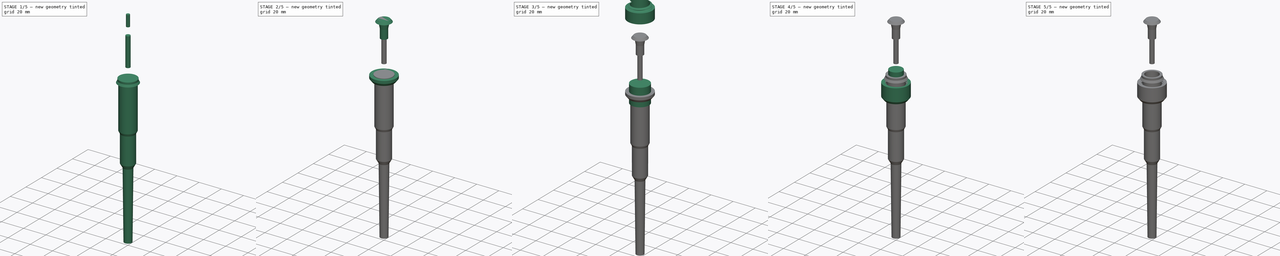
[diagram: build sequence overview — one tinted view per stage of 5, left to right]
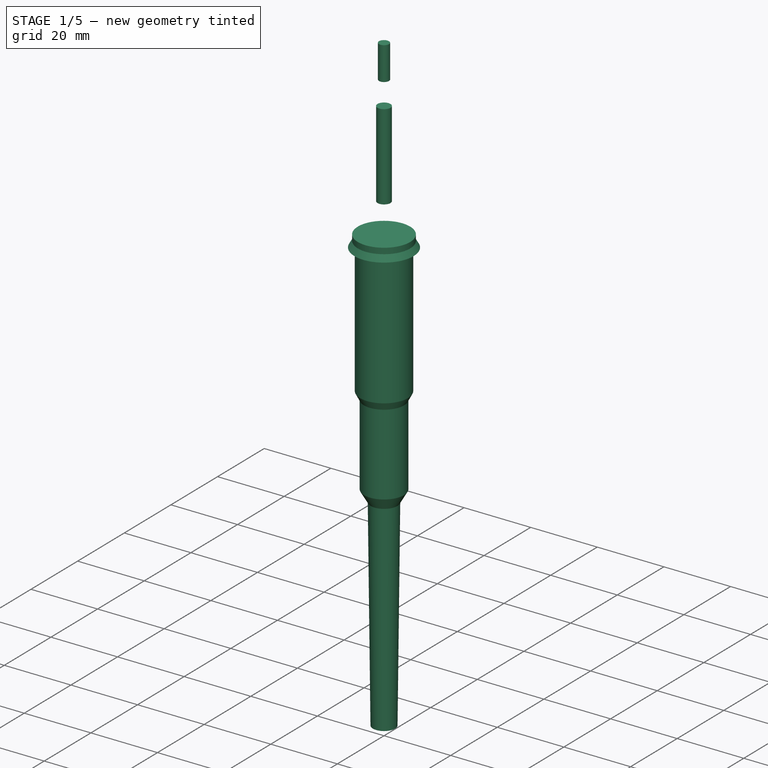
[diagram: stage 1 of 5 — iso view after this stage's code; geometry added in this stage tinted green]
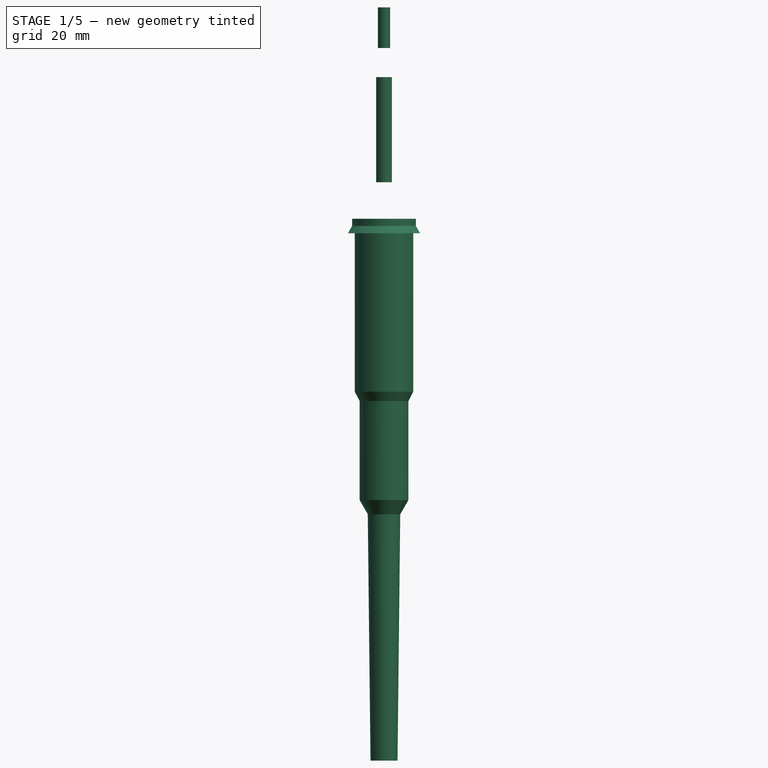
[diagram: stage 1 of 5 — front view after this stage's code; geometry added in this stage tinted green]
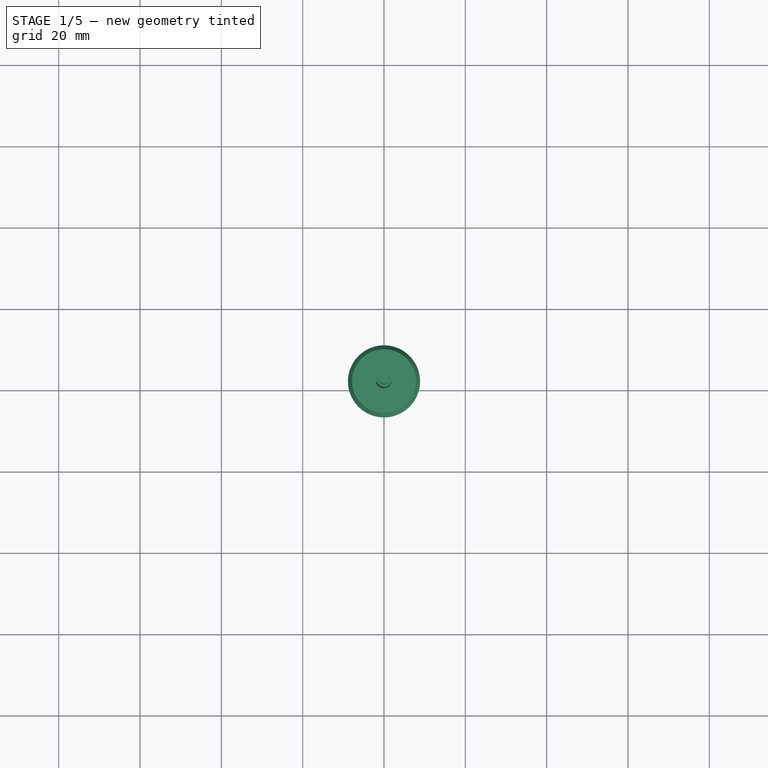
[diagram: stage 1 of 5 — top view after this stage's code; geometry added in this stage tinted green]
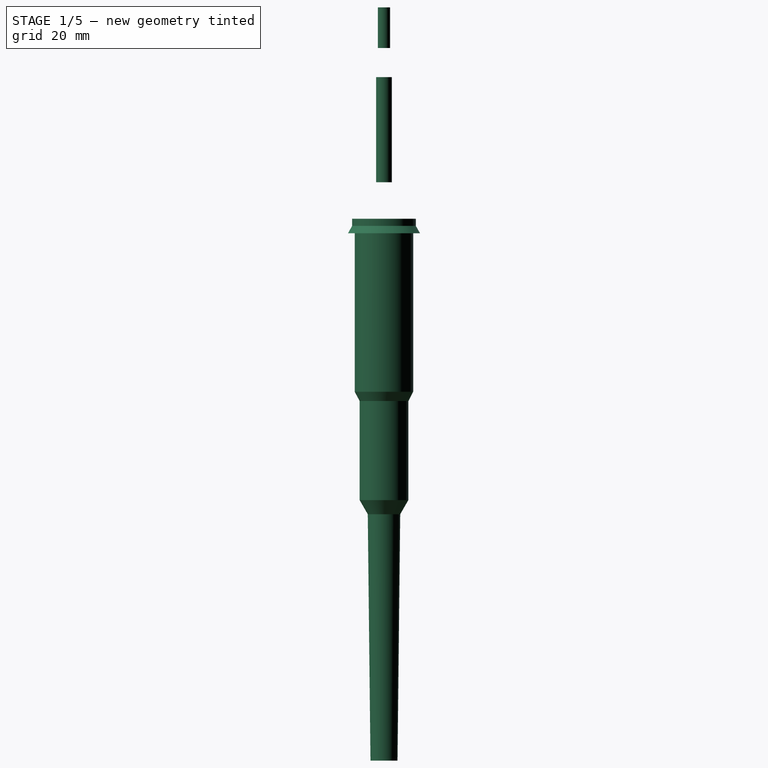
[diagram: stage 1 of 5 — right view after this stage's code; geometry added in this stage tinted green]
FCSTD DOCUMENT  (FreeCAD 0.18R16110 (Git))
Label: P1000_Bottom
License: All rights reserved
LicenseURL: http://en.wikipedia.org/wiki/All_rights_reserved
objects: Part::Cylinder×9, Part::Cut×7, Sketcher::SketchObject×3, Part::MultiFuse×3, Part::FeaturePython×3, Part::Revolution×2, Spreadsheet::Sheet×1, Part::Helix×1, Part::Sweep×1, Part::Cone×1
note: 30 computed .brp shape members not serialized (recipe doc carries the construction recipe); baked Part::Feature solids carry a one-line shape summary decoded from their .brp

FEATURE [Spreadsheet::Sheet] Spreadsheet
  cells = A1=Steigung; B1=2; A2=H; B2==sqrt((B1 / 2 / sin(60 / 2)) ^ 2 - (B1 / 2) ^ 2); A3=h; B3=8; A5=Nut; A6=ra; B6=11; A7=si; B7=2; A8=ri; B8==B11 - 5 / 8 * B2 + B15; A10=Bolt; A11=ra; B11==18.45 / 2 - B15; A12=si; B12=2.5; A13=ri; B13==B11 - B12; A15=tolerance; B15=0.2
FEATURE [Part::Cylinder] Cylinder014  label="Zylinder014"
  Angle = 360
  AttacherType = Attacher::AttachEngine3D
  Height = 10
  Placement = pos=(0,0,-17) rot=(0,0,1;0rad)
  Radius = 1.5
FEATURE [Part::Cylinder] Cylinder009  label="Zylinder009"
  Angle = 360
  AttacherType = Attacher::AttachEngine3D
  Height = 23.5
  Placement = pos=(0,0,-3) rot=(0,0,1;0rad)
  Radius = 1.5
FEATURE [Part::Helix] Helix001
  Angle = 0
  AttacherType = Attacher::AttachEngine3D
  Height = 13
  LocalCoord = 0
  Pitch = 2
  Placement = pos=(0,0,-1) rot=(0,0,1;0rad)
  Radius = 8.14247
  Style = 1
  expr: Radius = Spreadsheet.B8
  expr: Height = Spreadsheet.B3 + 5
  expr: Pitch = Spreadsheet.B1
FEATURE [Sketcher::SketchObject] Sketch002
  Placement = pos=(0,0,0) rot=(1,0,0;1.5708rad)
  sketch-geometry (11):
    g0: LineSegment StartX=0 StartY=0 StartZ=0 EndX=2.24 EndY=0 EndZ=0
    g1: LineSegment StartX=2.24 StartY=0 StartZ=0 EndX=2.24 EndY=-0.7 EndZ=0
    g2: LineSegment StartX=2.24 StartY=-0.7 StartZ=0 EndX=2.53245 EndY=-1.4231 EndZ=0
    g3: LineSegment StartX=2.53245 StartY=-1.4231 StartZ=0 EndX=2.05406 EndY=-1.4231 EndZ=0
    g4: LineSegment StartX=2.05406 StartY=-1.4231 StartZ=0 EndX=2.05174 EndY=-17.0131 EndZ=0
    g5: LineSegment StartX=2.05174 StartY=-17.0131 StartZ=0 EndX=1.71619 EndY=-17.9232 EndZ=0
    g6: LineSegment StartX=1.71619 StartY=-17.9232 StartZ=0 EndX=1.70963 EndY=-27.6732 EndZ=0
    g7: LineSegment StartX=1.70963 StartY=-27.6732 StartZ=0 EndX=1.13976 EndY=-29.0607 EndZ=0
    g8: LineSegment StartX=1.13976 StartY=-29.0607 StartZ=0 EndX=0.95 EndY=-53.3 EndZ=0
    g9: LineSegment StartX=0.95 StartY=-53.3 StartZ=0 EndX=0 EndY=-53.3 EndZ=0
    g10: LineSegment StartX=0 StartY=-53.3 StartZ=0 EndX=0 EndY=0 EndZ=0
  constraints (32):
    c: Coincident(g-1,g0)
    c: Horizontal(g0)
    c: Coincident(g0,g1)
    c: Vertical(g1)
    c: Coincident(g1,g2)
    c: Coincident(g2,g3)
    c: Coincident(g3,g4)
    c: Coincident(g4,g5)
    c: Coincident(g5,g6)
    c: Coincident(g6,g7)
    c: Coincident(g7,g8)
    c: Coincident(g8,g9)
    c: Coincident(g9,g10)
    c: Coincident(g10,g0)
    c: Vertical(g10)
    c: Horizontal(g3)
    c: Horizontal(g9)
    c: DistanceX(g0,g0) = 2.24
    c: Distance(g4) = 15.59
    c: Distance(g2) = 0.78
    c: DistanceY(g1,g1) = 0.7
    c: DistanceY(g10,g10) = 53.3
    c: Distance(g5) = 0.97
    c: Distance(g7) = 1.5
    c: DistanceX(g9,g9) = 0.95
    c: Distance(g6) = 9.75
    c: Distance(g8) = 24.24
    c: Angle(g2,g3) = 1.18647
    c: Angle(g4,g5) = 2.78851
    c: Angle(g6,g5) = 2.78904
    c: Angle(g6,g7) = 2.75256
    c: Angle(g8,g7) = 2.75971
FEATURE [Part::Revolution] Revolve  label="Pip_Stumpf"
  Angle = 360
  Axis = (0,0,1)
  Base = (0,0,0)
  FaceMakerClass = Part::FaceMakerBullseye
  Placement = pos=(0,0,-64) rot=(0,0,1;0rad)
  Solid = true
  Source = -> Sketch002
  Symmetric = false
FEATURE [Part::FeaturePython] Scale  # Draft clone (typed FeaturePython)
  Fuse = false
  Objects = -> [Revolve]
  Placement = pos=(0,0,-59) rot=(0,0,-1;1.5708rad)
  Scale = (3.5,3.5,2.5)
FEATURE [Part::FeaturePython] Scale007  # Draft clone (typed FeaturePython)
  Fuse = false
  Objects = -> [Cylinder009]
  Placement = pos=(0,0,-50) rot=(0,0,1;0rad)
  Scale = (1.3,1.3,1.1)
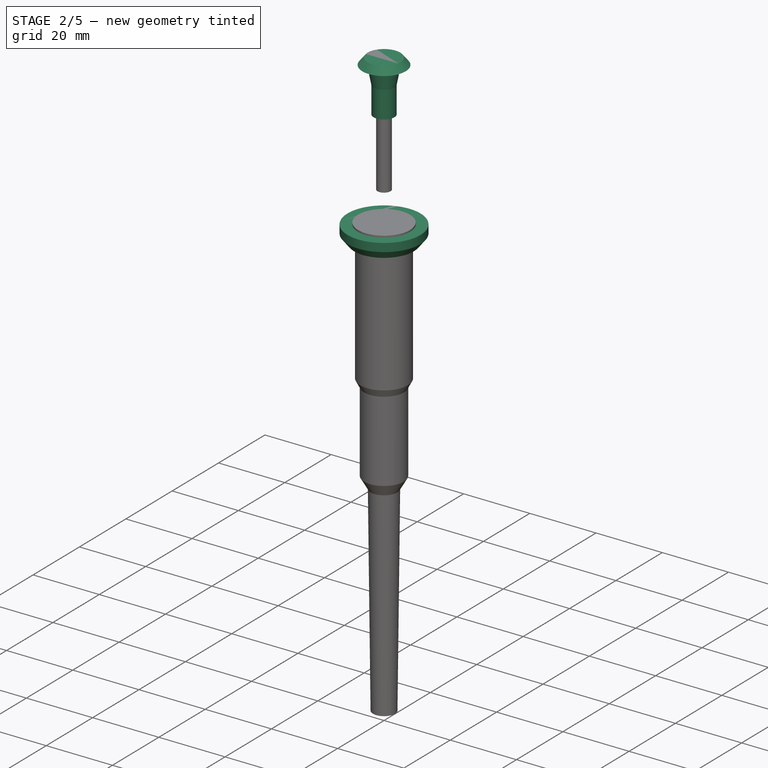
[diagram: stage 2 of 5 — iso view after this stage's code; geometry added in this stage tinted green]
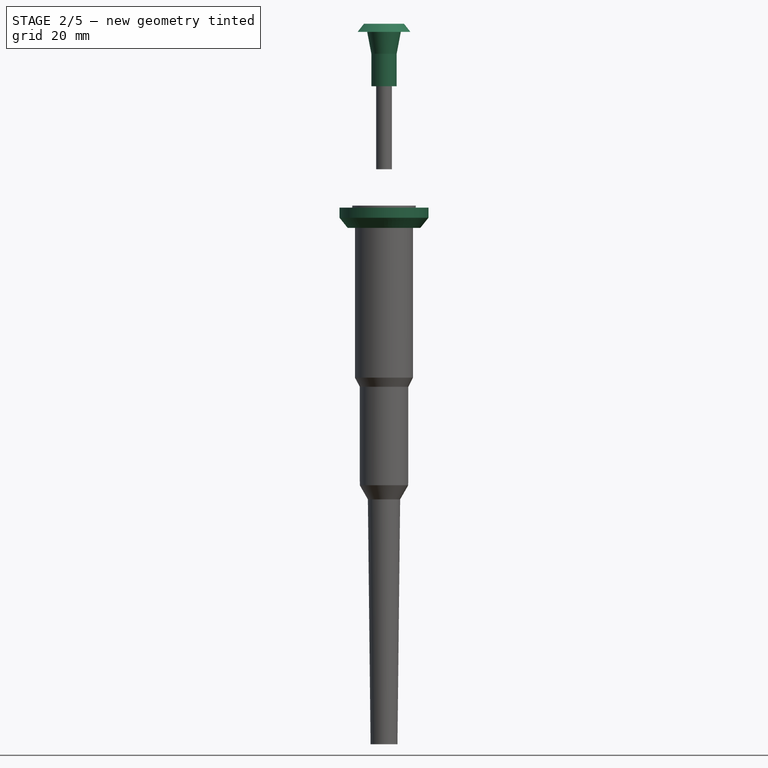
[diagram: stage 2 of 5 — front view after this stage's code; geometry added in this stage tinted green]
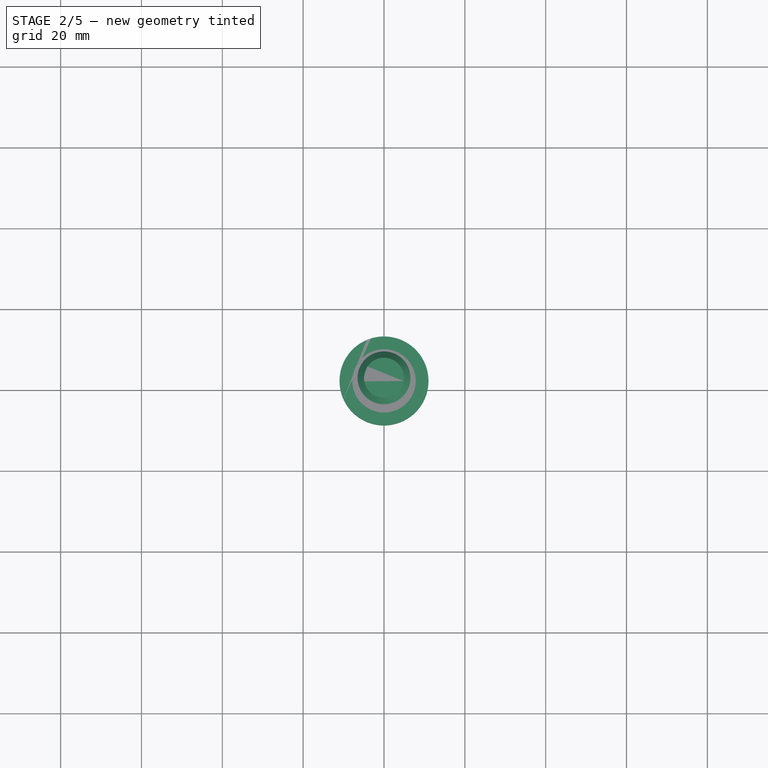
[diagram: stage 2 of 5 — top view after this stage's code; geometry added in this stage tinted green]
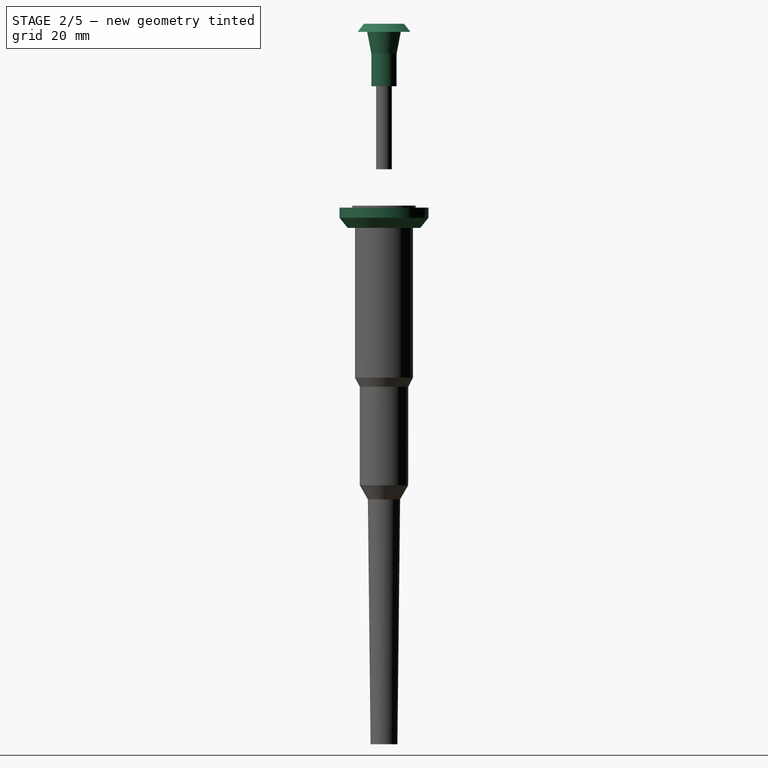
[diagram: stage 2 of 5 — right view after this stage's code; geometry added in this stage tinted green]
FEATURE [Part::Cylinder] Cylinder200  label="Zylinder200"
  Angle = 360
  AttacherType = Attacher::AttachEngine3D
  Height = 2.5
  Placement = pos=(0,0,-62) rot=(0,0,-1;1.5708rad)
  Radius = 11
  expr: Radius = Spreadsheet.B6
FEATURE [Sketcher::SketchObject] Sketch006  label="KolbenAufsatz"
  Placement = pos=(0,0,0) rot=(1,0,0;1.5708rad)
  sketch-geometry (7):
    g0: LineSegment StartX=0 StartY=0 StartZ=0 EndX=-3.81 EndY=0 EndZ=0
    g1: LineSegment StartX=-3.81 StartY=0 StartZ=0 EndX=-5.0293 EndY=-1.8432 EndZ=0
    g2: LineSegment StartX=-5.0293 StartY=-1.8432 StartZ=0 EndX=-3.1993 EndY=-1.8432 EndZ=0
    g3: LineSegment StartX=-3.1993 StartY=-1.8432 StartZ=0 EndX=-2.41 EndY=-6.74 EndZ=0
    g4: LineSegment StartX=-2.41 StartY=-6.74 StartZ=0 EndX=-2.41 EndY=-14.07 EndZ=0
    g5: LineSegment StartX=-2.41 StartY=-14.07 StartZ=0 EndX=0 EndY=-14.07 EndZ=0
    g6: LineSegment StartX=0 StartY=-14.07 StartZ=0 EndX=0 EndY=0 EndZ=0
  constraints (20):
    c: Coincident(g-1,g0)
    c: Horizontal(g0)
    c: Coincident(g0,g1)
    c: Coincident(g1,g2)
    c: Coincident(g2,g3)
    c: Coincident(g3,g4)
    c: Vertical(g4)
    c: Coincident(g4,g5)
    c: Horizontal(g5)
    c: Coincident(g5,g6)
    c: Coincident(g6,g0)
    c: Vertical(g6)
    c: Horizontal(g2)
    c: DistanceX(g0,g0) = 3.81
    c: DistanceX(g2,g2) = 1.83
    c: DistanceX(g5,g5) = 2.41
    c: DistanceY(g6,g6) = 14.07
    c: DistanceY(g4,g4) = 7.33
    c: Distance(g3) = 4.96
    c: Distance(g1) = 2.21
FEATURE [Part::Revolution] Revolve001
  Angle = 360
  Axis = (0,0,1)
  Base = (0,0,0)
  FaceMakerClass = Part::FaceMakerBullseye
  Solid = true
  Source = -> Sketch006
  Symmetric = false
FEATURE [Part::Cut] Cut016
  Base = -> Revolve001
  Placement = pos=(0,0,27.5) rot=(0,0,1;0rad)
  Tool = -> Cylinder014
FEATURE [Part::Cone] Cone001  label="Kegel001"
  Angle = 360
  AttacherType = Attacher::AttachEngine3D
  Height = 2.5
  Placement = pos=(0,0,-64.5) rot=(0,0,-1;1.5708rad)
  Radius1 = 9
  Radius2 = 11
FEATURE [Part::FeaturePython] Scale008  # Draft clone (typed FeaturePython)
  Fuse = false
  Objects = -> [Cut016]
  Placement = pos=(0,0,-14) rot=(0,0,1;0rad)
  Scale = (1.3,1.3,1.1)
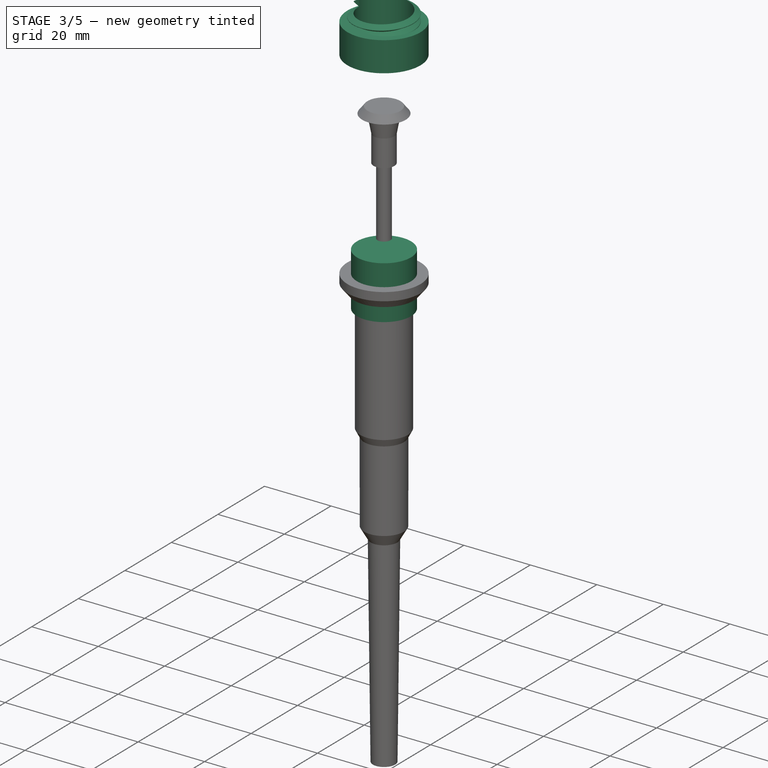
[diagram: stage 3 of 5 — iso view after this stage's code; geometry added in this stage tinted green]
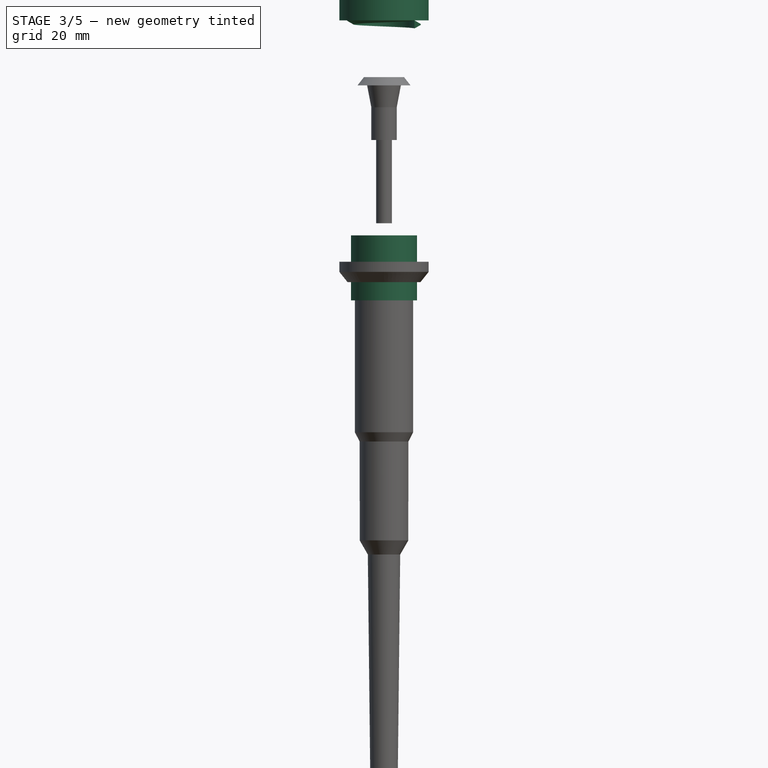
[diagram: stage 3 of 5 — front view after this stage's code; geometry added in this stage tinted green]
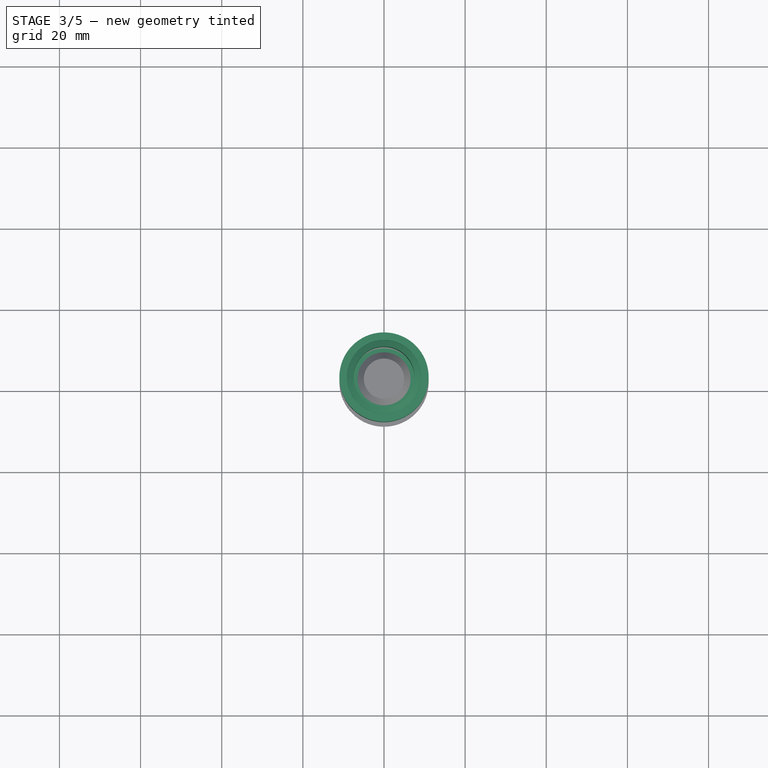
[diagram: stage 3 of 5 — top view after this stage's code; geometry added in this stage tinted green]
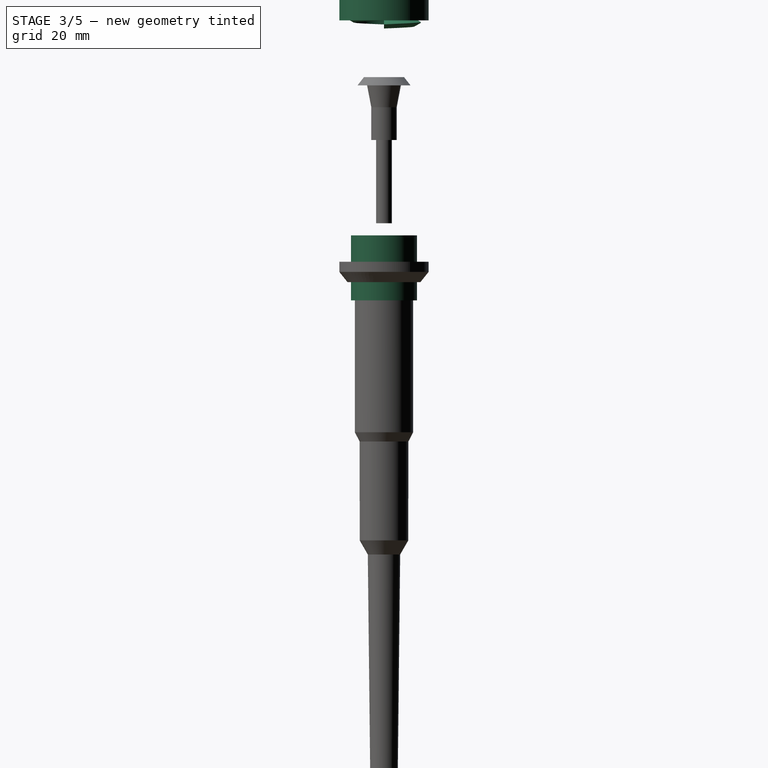
[diagram: stage 3 of 5 — right view after this stage's code; geometry added in this stage tinted green]
FEATURE [Part::Cylinder] Cylinder199  label="Zylinder199"
  Angle = 360
  AttacherType = Attacher::AttachEngine3D
  Height = 16
  Placement = pos=(0,0,-69) rot=(0,0,1;0rad)
  Radius = 8.14247
  expr: Height = Spreadsheet.B3 * 2
  expr: Radius = Spreadsheet.B8
FEATURE [Part::Cylinder] Cylinder002  label="Zylinder002"
  Angle = 360
  AttacherType = Attacher::AttachEngine3D
  Height = 9
  Placement = pos=(0,0,0) rot=(0,0,-1;1.5708rad)
  Radius = 11
  expr: Height = Spreadsheet.B3 + 1
  expr: Radius = Spreadsheet.B6
FEATURE [Part::Cylinder] Cylinder003  label="Zylinder003"
  Angle = 360
  AttacherType = Attacher::AttachEngine3D
  Height = 16
  Radius = 8.14247
  expr: Height = Spreadsheet.B3 * 2
  expr: Radius = Spreadsheet.B8
FEATURE [Part::Cut] Cut002
  Base = -> Cylinder002
  Tool = -> Cylinder003
FEATURE [Sketcher::SketchObject] Sketch001
  MapMode = 3
  Placement = pos=(0,0,0) rot=(1,0,0;1.5708rad)
  expr: Constraints[21] = Spreadsheet.B2 * 7 / 8
  expr: Constraints[20] = Spreadsheet.B1 / 2
  expr: Constraints[19] = Spreadsheet.B1 / 8 / 2
  expr: Constraints[2] = Spreadsheet.B11 - Spreadsheet.B2 * 7 / 8
  sketch-geometry (9):
    g0: LineSegment [constr] StartX=0 StartY=0 StartZ=0 EndX=7.50946 EndY=0 EndZ=0
    g1: LineSegment StartX=7.50946 StartY=0 StartZ=0 EndX=7.50946 EndY=1 EndZ=0
    g2: LineSegment StartX=7.50946 StartY=1 StartZ=0 EndX=7.50946 EndY=2 EndZ=0
    g3: LineSegment [constr] StartX=7.50946 StartY=1 StartZ=0 EndX=9.025 EndY=1 EndZ=0
    g4: LineSegment [constr] StartX=9.025 StartY=1 StartZ=0 EndX=9.025 EndY=1.125 EndZ=0
    g5: LineSegment [constr] StartX=9.025 StartY=1 StartZ=0 EndX=9.025 EndY=0.875 EndZ=0
    g6: LineSegment StartX=7.50946 StartY=2 StartZ=0 EndX=9.025 EndY=1.125 EndZ=0
    g7: LineSegment StartX=7.50946 StartY=0 StartZ=0 EndX=9.025 EndY=0.875 EndZ=0
    g8: ArcOfCircle CenterX=8.95283 CenterY=1 CenterZ=0 NormalX=0 NormalY=0 NormalZ=1 AngleXU=0 Radius=0.144339 StartAngle=5.236 EndAngle=7.33037
  constraints (25):
    c: Coincident(g0,g-1)
    c: Horizontal(g0)
    c: DistanceX(g0,g0) = 7.50946
    c: Coincident(g1,g0)
    c: Vertical(g1)
    c: Coincident(g2,g1)
    c: Vertical(g2)
    c: Equal(g2,g1)
    c: Coincident(g3,g1)
    c: Horizontal(g3)
    c: Coincident(g4,g3)
    c: Vertical(g4)
    c: Coincident(g5,g3)
    c: Vertical(g5)
    c: Equal(g4,g5)
    c: Coincident(g6,g4)
    c: Coincident(g7,g0)
    c: Coincident(g7,g5)
    c: Coincident(g2,g6)
    c: DistanceY(g4,g4) = 0.125
    c: DistanceY(g2,g2) = 1
    c: DistanceX(g3,g3) = 1.51554
    c: Coincident(g8,g5)
    c: Coincident(g8,g4)
    c: Tangent(g6,g8)
FEATURE [Part::Sweep] Sweep013
  Frenet = true
  Sections = -> [Sketch001]
  Solid = true
  Spine = -> Helix001 [Edge1,Edge2,Edge3,Edge4,Edge5,Edge6,Edge7]
  Transition = 1
FEATURE [Part::MultiFuse] Fusion053
  Shapes = -> [Cone001,Cylinder200]
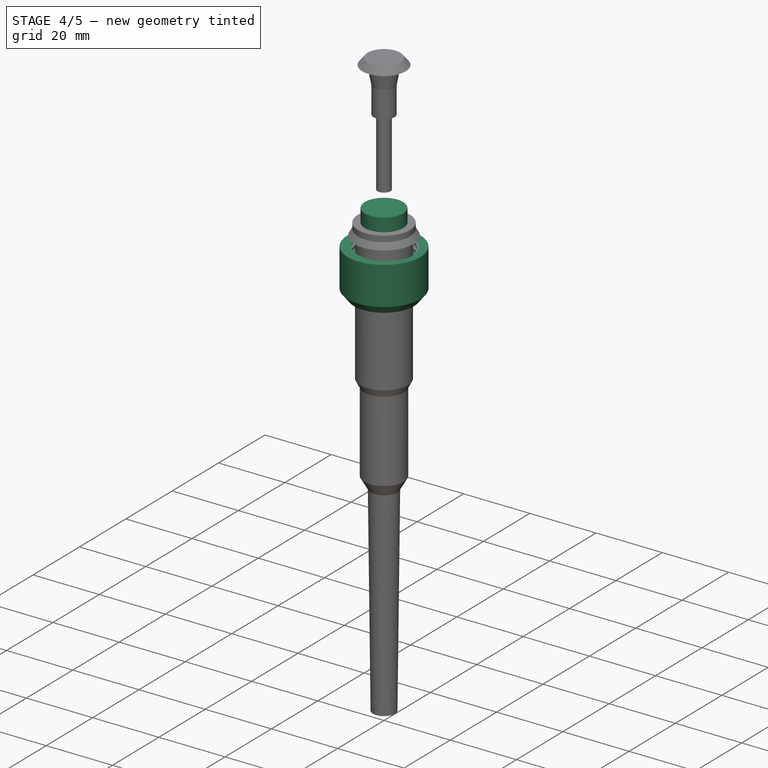
[diagram: stage 4 of 5 — iso view after this stage's code; geometry added in this stage tinted green]
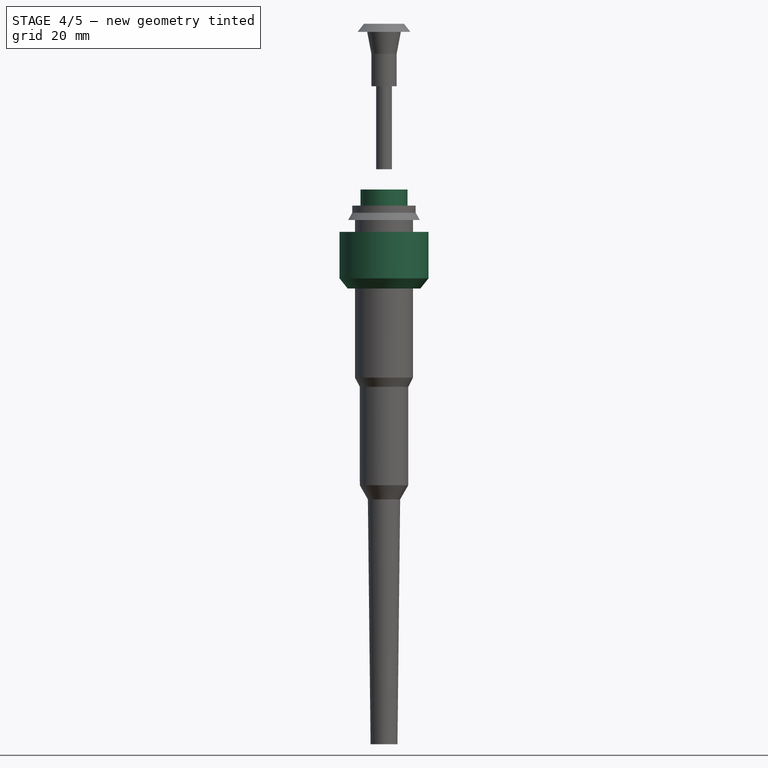
[diagram: stage 4 of 5 — front view after this stage's code; geometry added in this stage tinted green]
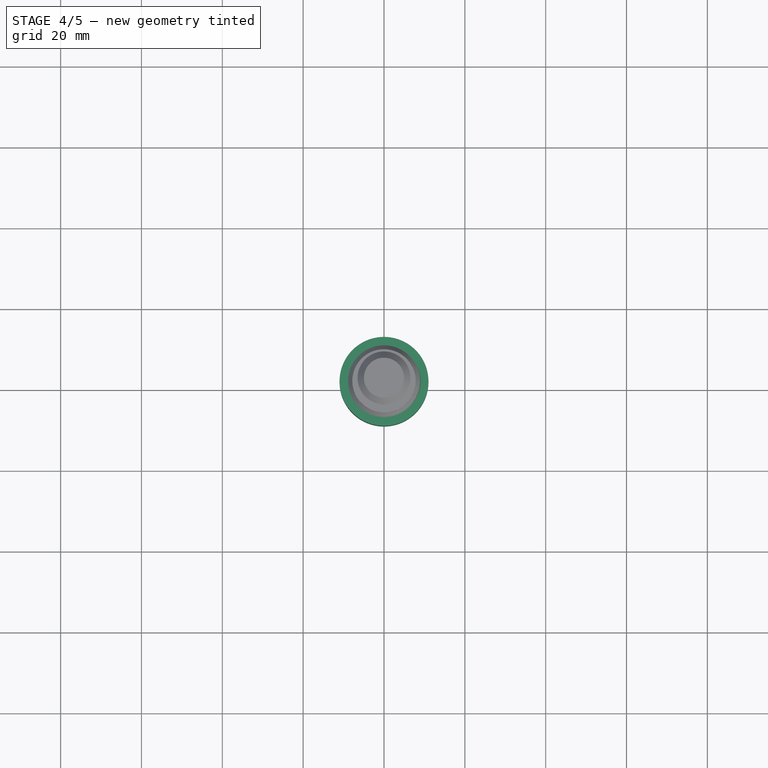
[diagram: stage 4 of 5 — top view after this stage's code; geometry added in this stage tinted green]
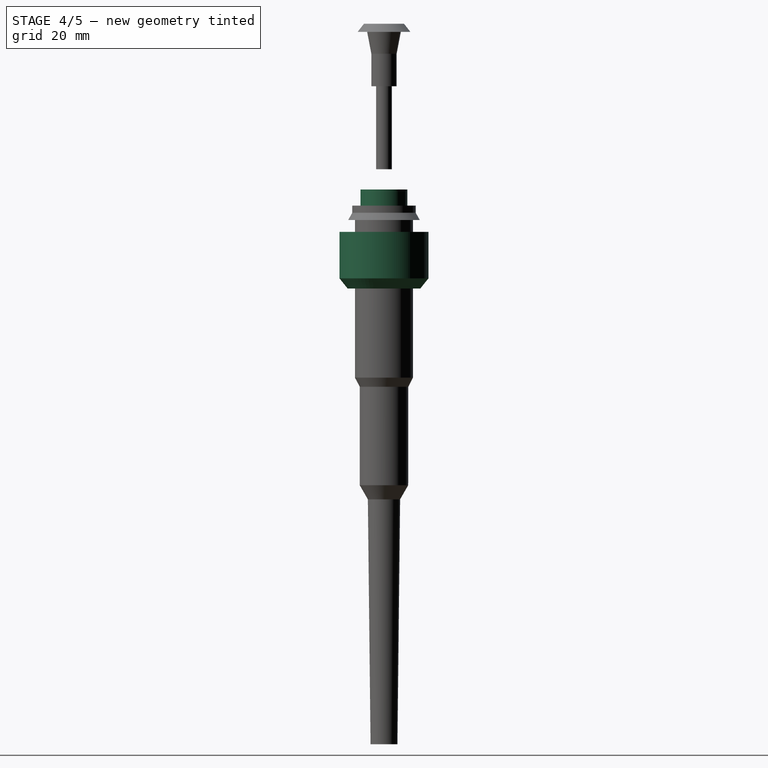
[diagram: stage 4 of 5 — right view after this stage's code; geometry added in this stage tinted green]
FEATURE [Part::Cylinder] Cylinder196  label="Zylinder196"
  Angle = 360
  AttacherType = Attacher::AttachEngine3D
  Height = 46
  Placement = pos=(0,0,-101) rot=(0,0,1;0rad)
  Radius = 5.8
FEATURE [Part::Cylinder] Cylinder197  label="Zylinder197"
  Angle = 360
  AttacherType = Attacher::AttachEngine3D
  Height = 28
  Placement = pos=(0,0,-127) rot=(0,0,1;0rad)
  Radius = 4
FEATURE [Part::Cut] Cut120  label="ConnectionNut"
  Base = -> Cut002
  Placement = pos=(0,0,-59.5) rot=(0,0,1;0rad)
  Tool = -> Sweep013
FEATURE [Part::Cut] Cut121
  Base = -> Fusion053
  Tool = -> Cylinder199
FEATURE [Part::MultiFuse] Fusion054  label="ConnectionNut001"
  Placement = pos=(0,0,-15) rot=(0,0,1;0rad)
  Shapes = -> [Cut121,Cut120]
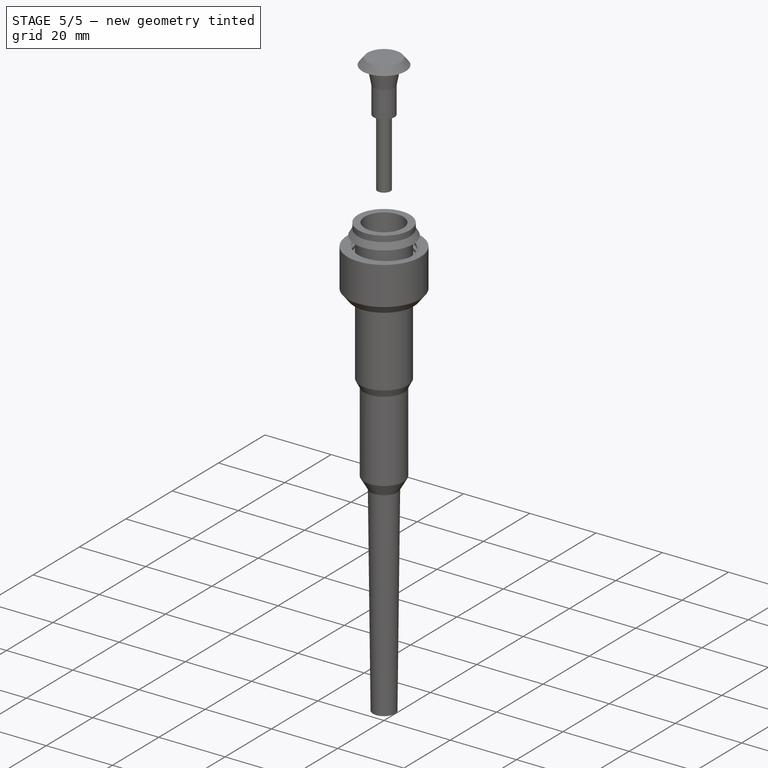
[diagram: stage 5 of 5 — iso view after this stage's code; geometry added in this stage tinted green]
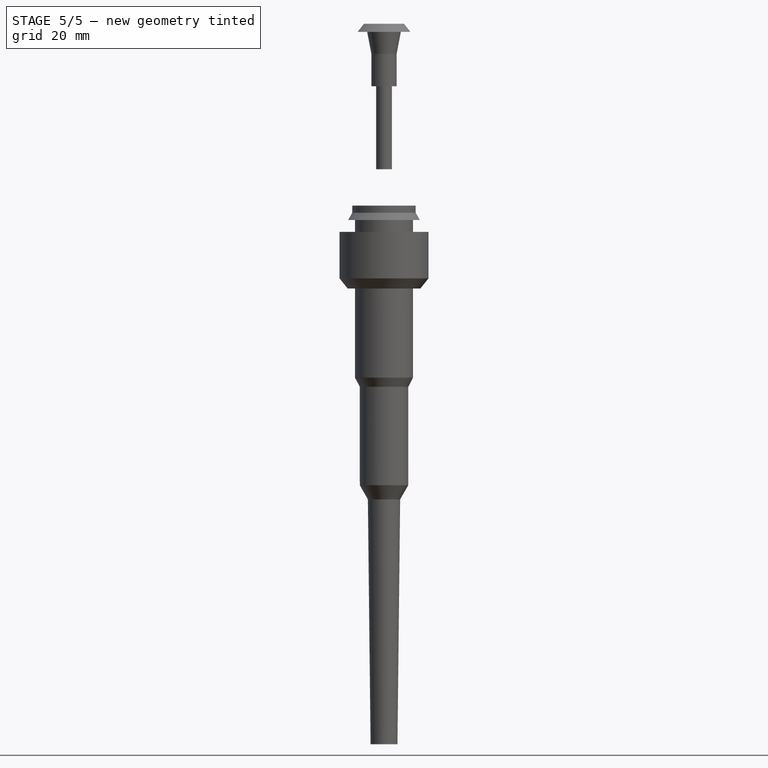
[diagram: stage 5 of 5 — front view after this stage's code; geometry added in this stage tinted green]
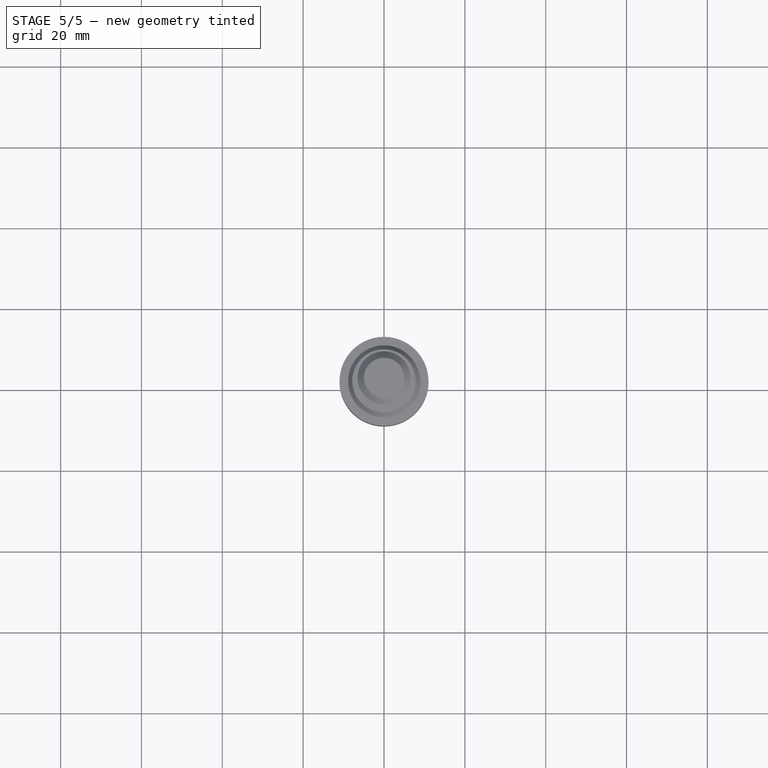
[diagram: stage 5 of 5 — top view after this stage's code; geometry added in this stage tinted green]
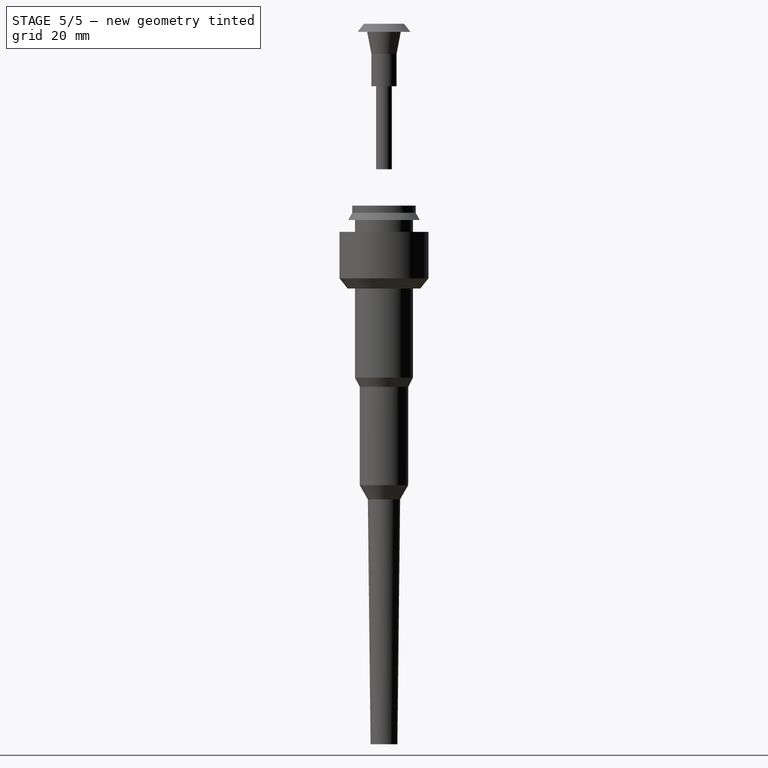
[diagram: stage 5 of 5 — right view after this stage's code; geometry added in this stage tinted green]
FEATURE [Part::Cylinder] Cylinder198  label="Zylinder198"
  Angle = 360
  AttacherType = Attacher::AttachEngine3D
  Height = 67
  Placement = pos=(0,0,-193) rot=(0,0,1;0rad)
  Radius = 1.5
FEATURE [Part::Cut] Cut117
  Base = -> Scale
  Tool = -> Cylinder196
FEATURE [Part::Cut] Cut118
  Base = -> Cut117
  Tool = -> Cylinder197
FEATURE [Part::Cut] Cut119  label="PipettenStumpf"
  Base = -> Cut118
  Tool = -> Cylinder198
FEATURE [Part::MultiFuse] Fusion
  Shapes = -> [Scale007,Scale008,Cut119,Fusion054]
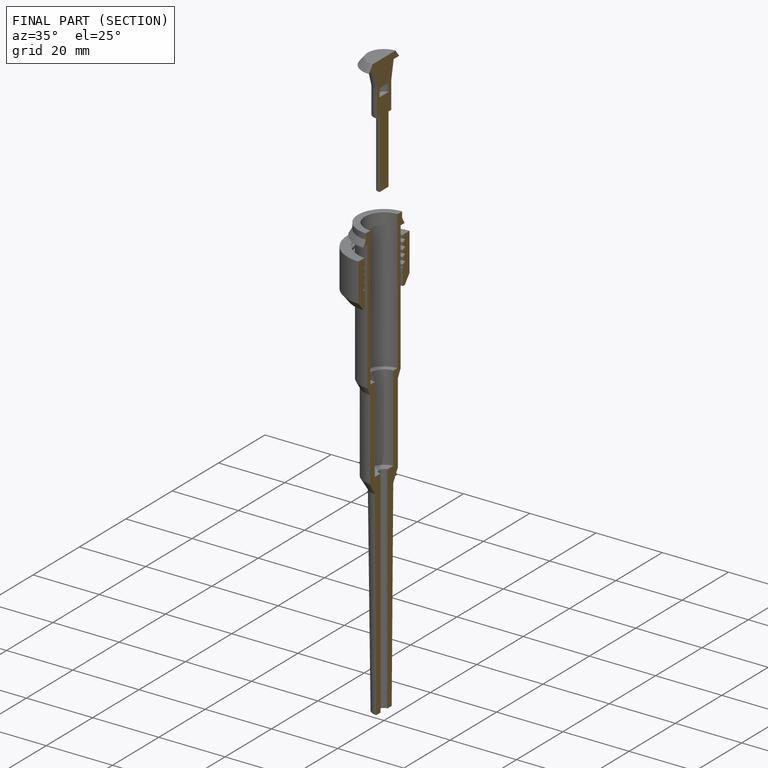
[diagram: finished part — half-section view (interior)]
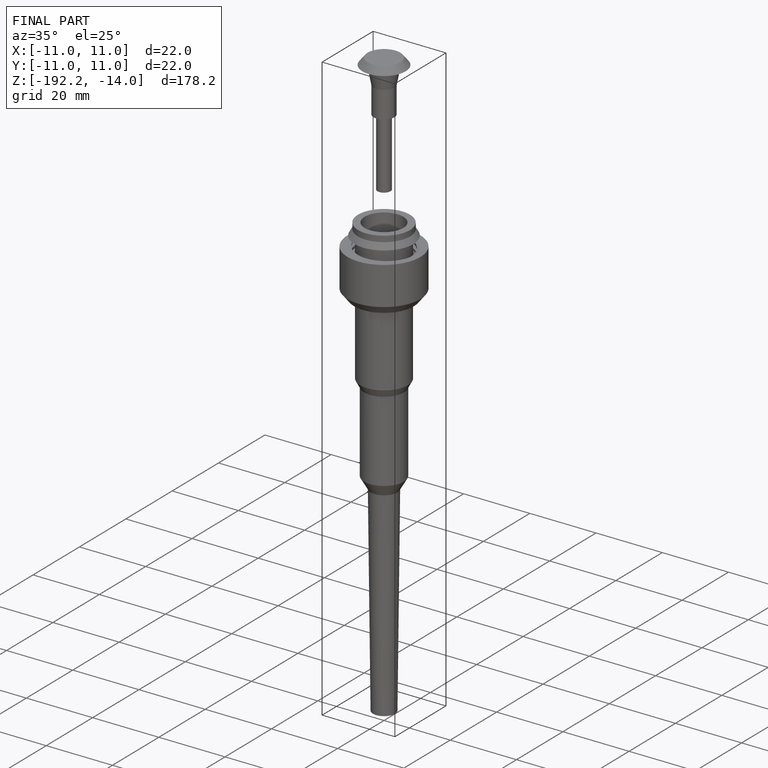
[diagram: finished part — iso view with bounding-box wireframe]
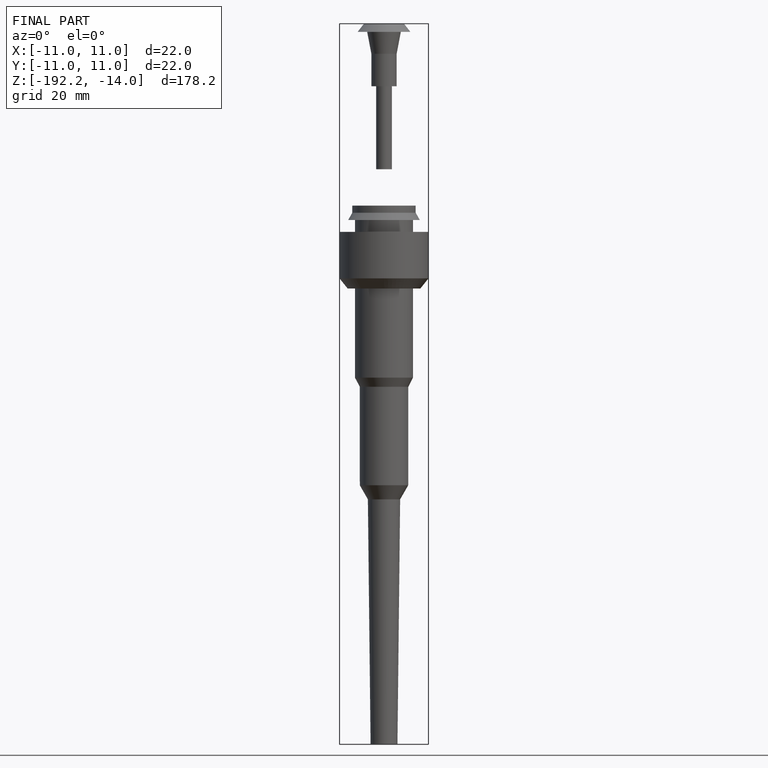
[diagram: finished part — front view with bounding-box wireframe]
